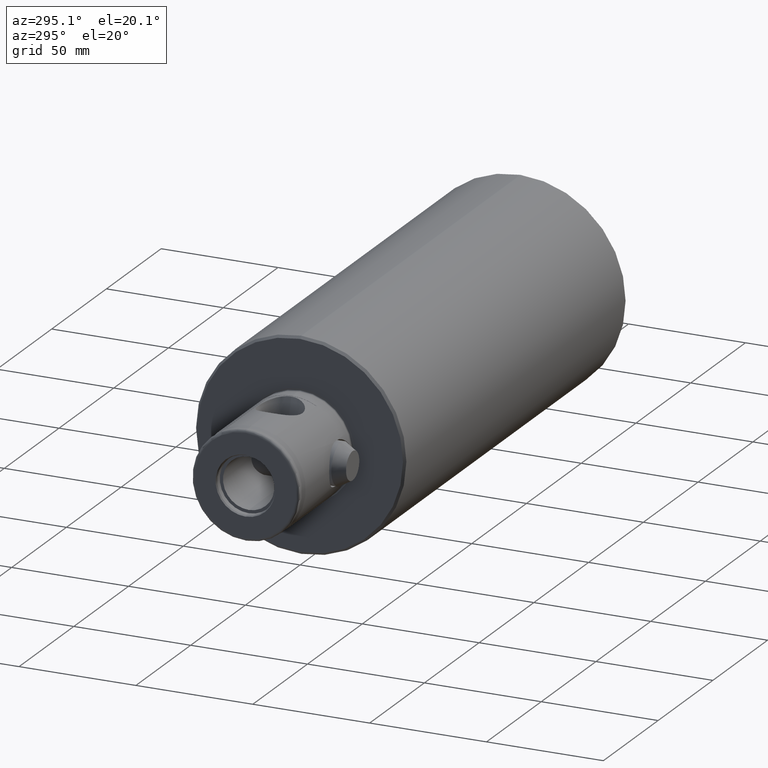
[diagram: clean part render]
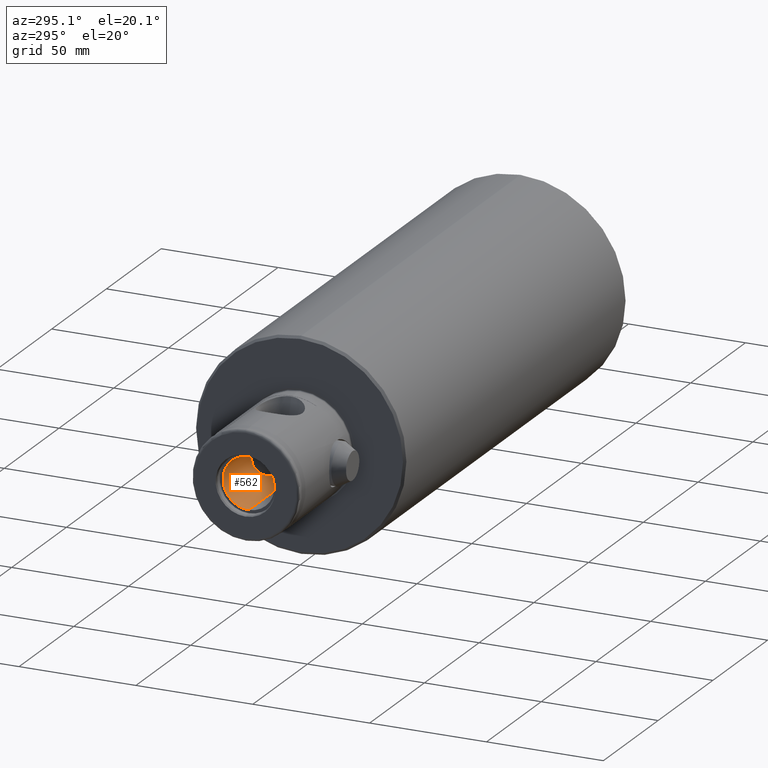
[diagram: same view with one face highlighted and labeled with its STEP entity id]
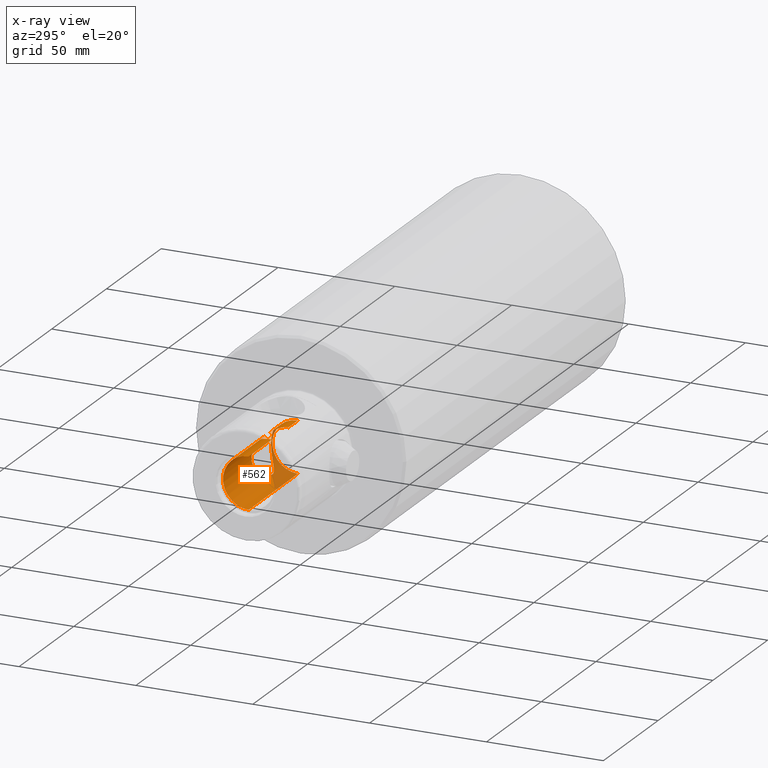
[diagram: x-ray of the same camera — body ghosted, the highlighted face saturated]
A machine part, auxiliary view. The second image highlights one B-rep face of the part: STEP entity #562.
The next image is the same camera in x-ray: the body ghosted, the highlighted face saturated — about 17% of this face is hidden behind the body in this view.
In plain terms, the highlighted cylindrical surface (edge-blend (fillet) strip) has radius 11 mm, axis along (-1, -0, -0).
Its self-contained STEP definition (entity closure, byte-faithful):
#211 = VERTEX_POINT ( 'NONE', #1195 ) ;
#230 = VERTEX_POINT ( 'NONE', #1301 ) ;
#313 = EDGE_CURVE ( 'NONE', #314, #315, #1628, .T. ) ;
#314 = VERTEX_POINT ( 'NONE', #1549 ) ;
#315 = VERTEX_POINT ( 'NONE', #1629 ) ;
#430 = VERTEX_POINT ( 'NONE', #1937 ) ;
#474 = EDGE_CURVE ( 'NONE', #484, #211, #3357, .T. ) ;
#484 = VERTEX_POINT ( 'NONE', #3327 ) ;
#507 = EDGE_CURVE ( 'NONE', #430, #546, #3373, .T. ) ;
#542 = EDGE_CURVE ( 'NONE', #230, #544, #2094, .T. ) ;
#544 = VERTEX_POINT ( 'NONE', #2090 ) ;
#546 = VERTEX_POINT ( 'NONE', #2040 ) ;
#562 = ADVANCED_FACE ( 'NONE', ( #2160, #2136 ), #2143, .F. ) ;
#563 = ORIENTED_EDGE ( 'NONE', *, *, #596, .F. ) ;
#585 = ORIENTED_EDGE ( 'NONE', *, *, #745, .F. ) ;
#586 = EDGE_LOOP ( 'NONE', ( #637, #743 ) ) ;
#595 = EDGE_CURVE ( 'NONE', #315, #314, #2243, .T. ) ;
#596 = EDGE_CURVE ( 'NONE', #484, #430, #2181, .T. ) ;
#608 = EDGE_CURVE ( 'NONE', #544, #546, #2327, .T. ) ;
#609 = ORIENTED_EDGE ( 'NONE', *, *, #608, .T. ) ;
#610 = ORIENTED_EDGE ( 'NONE', *, *, #507, .F. ) ;
#637 = ORIENTED_EDGE ( 'NONE', *, *, #595, .T. ) ;
#667 = ORIENTED_EDGE ( 'NONE', *, *, #474, .T. ) ;
#743 = ORIENTED_EDGE ( 'NONE', *, *, #313, .T. ) ;
#745 = EDGE_CURVE ( 'NONE', #230, #211, #2488, .T. ) ;
#746 = EDGE_LOOP ( 'NONE', ( #610, #563, #667, #585, #747, #609 ) ) ;
#747 = ORIENTED_EDGE ( 'NONE', *, *, #542, .T. ) ;
#1195 = CARTESIAN_POINT ( 'NONE',  ( 39.29999999999999700, 0.0000000000000000000, 11.00000000000000000 ) ) ;
#1301 = CARTESIAN_POINT ( 'NONE',  ( 24.29999999999999000, 2.258328280272642200E-020, 11.00000000000000000 ) ) ;
#1505 = CARTESIAN_POINT ( 'NONE',  ( 35.56241124897054800, 6.773151438223648000, 8.668594485892423800 ) ) ;
#1506 = CARTESIAN_POINT ( 'NONE',  ( 35.00207751754993500, 6.994374932525801100, 8.491102994853516600 ) ) ;
#1507 = CARTESIAN_POINT ( 'NONE',  ( 34.73243995391133200, 7.115117841734931200, 8.390691223271426600 ) ) ;
#1508 = CARTESIAN_POINT ( 'NONE',  ( 33.94870166744479400, 7.496988139732116500, 8.056647767958544600 ) ) ;
#1509 = CARTESIAN_POINT ( 'NONE',  ( 33.45930032922770200, 7.777229871337514300, 7.790658944439846000 ) ) ;
#1510 = CARTESIAN_POINT ( 'NONE',  ( 32.76260568321712400, 8.209575931333963800, 7.324464543071621300 ) ) ;
#1511 = CARTESIAN_POINT ( 'NONE',  ( 32.53662872687979000, 8.355986537263556000, 7.157469761059587700 ) ) ;
#1512 = CARTESIAN_POINT ( 'NONE',  ( 37.99999999999999300, 6.324555320336747500, 9.000000000000003600 ) ) ;
#1513 = CARTESIAN_POINT ( 'NONE',  ( 37.68253252754211500, 6.324555320336748400, 9.000000000000003600 ) ) ;
#1514 = CARTESIAN_POINT ( 'NONE',  ( 37.36758758028091900, 6.348810466722651000, 8.983078160859561100 ) ) ;
#1515 = CARTESIAN_POINT ( 'NONE',  ( 36.75246002574575500, 6.439239462942379300, 8.918479843861545600 ) ) ;
#1516 = CARTESIAN_POINT ( 'NONE',  ( 36.45039919126622900, 6.505369226234806000, 8.870794822159627600 ) ) ;
#1517 = CARTESIAN_POINT ( 'NONE',  ( 35.85582995770661800, 6.672033518612054500, 8.746130474273416100 ) ) ;
#1523 = CARTESIAN_POINT ( 'NONE',  ( 28.99932927823758500, 11.00054877189567100, 0.2918124169081550100 ) ) ;
#1524 = CARTESIAN_POINT ( 'NONE',  ( 29.00071516957389400, 10.99941486172795500, -0.3318139073567099600 ) ) ;
#1525 = CARTESIAN_POINT ( 'NONE',  ( 29.01756788672949100, 10.98561425411706300, -0.6432021774064070600 ) ) ;
#1526 = CARTESIAN_POINT ( 'NONE',  ( 29.08387648782999300, 10.93146341324058600, -1.265123403570919800 ) ) ;
#1527 = CARTESIAN_POINT ( 'NONE',  ( 29.13388790492686900, 10.89066197485385100, -1.577329599810656700 ) ) ;
#1528 = CARTESIAN_POINT ( 'NONE',  ( 29.32798476031978700, 10.73303995099935200, -2.485920569551182300 ) ) ;
#1529 = CARTESIAN_POINT ( 'NONE',  ( 29.51573923968092600, 10.58116722006069200, -3.062465036862974000 ) ) ;
#1530 = CARTESIAN_POINT ( 'NONE',  ( 29.62486903029110500, 10.49464205608623900, 3.308720680275588400 ) ) ;
#1531 = CARTESIAN_POINT ( 'NONE',  ( 29.51740374296807800, 10.58071000996653600, 3.022975485109763200 ) ) ;
#1532 = CARTESIAN_POINT ( 'NONE',  ( 29.33239189154934900, 10.72960462351121400, 2.442414731716818600 ) ) ;
#1533 = CARTESIAN_POINT ( 'NONE',  ( 29.25414893641667300, 10.79298596828221700, 2.146096540715255200 ) ) ;
#1534 = CARTESIAN_POINT ( 'NONE',  ( 29.12746308204170400, 10.89589586246529200, 1.540691347388762700 ) ) ;
#1535 = CARTESIAN_POINT ( 'NONE',  ( 29.07882424051056300, 10.93558575195800800, 1.229394952563785700 ) ) ;
#1536 = CARTESIAN_POINT ( 'NONE',  ( 29.01479483002166800, 10.98788290588002600, 0.6040504403490600800 ) ) ;
#1548 = CARTESIAN_POINT ( 'NONE',  ( 37.99999999999999300, 6.324555320336755500, -9.000000000000003600 ) ) ;
#1549 = CARTESIAN_POINT ( 'NONE',  ( 37.99999999999999300, 6.324555320336755500, -9.000000000000003600 ) ) ;
#1568 = CARTESIAN_POINT ( 'NONE',  ( 32.10389577112371000, 8.645121770151503100, 6.805420925311279800 ) ) ;
#1569 = CARTESIAN_POINT ( 'NONE',  ( 31.89613122761812000, 8.788471667187545600, 6.619740072472650300 ) ) ;
#1570 = CARTESIAN_POINT ( 'NONE',  ( 31.49700084325641900, 9.070227025113949200, 6.228095582515657600 ) ) ;
#1571 = CARTESIAN_POINT ( 'NONE',  ( 31.30563826794921700, 9.208643388611824000, 6.022136398295314700 ) ) ;
#1572 = CARTESIAN_POINT ( 'NONE',  ( 30.93938088378450500, 9.478236986029939400, 5.588225433440531900 ) ) ;
#1573 = CARTESIAN_POINT ( 'NONE',  ( 30.76383285977946600, 9.609927495919244200, 5.359230109251044800 ) ) ;
#1574 = CARTESIAN_POINT ( 'NONE',  ( 30.27061858885429000, 9.984873728867818000, 4.646559155060434600 ) ) ;
#1575 = CARTESIAN_POINT ( 'NONE',  ( 29.98422543537160600, 10.20937874570888000, 4.136322440102720300 ) ) ;
#1590 = CARTESIAN_POINT ( 'NONE',  ( 29.87773150708439100, 10.29397154860352800, -3.888328396208949700 ) ) ;
#1591 = CARTESIAN_POINT ( 'NONE',  ( 30.01123720998654700, 10.18883133069315300, -4.155091366563233600 ) ) ;
#1592 = CARTESIAN_POINT ( 'NONE',  ( 30.29710993387521600, 9.966266519665961000, -4.663753832353084900 ) ) ;
#1593 = CARTESIAN_POINT ( 'NONE',  ( 30.45016142005556900, 9.848293230677773700, -4.907236627955245300 ) ) ;
#1594 = CARTESIAN_POINT ( 'NONE',  ( 30.93797117138971600, 9.477738077880625100, -5.608197967950896900 ) ) ;
#1595 = CARTESIAN_POINT ( 'NONE',  ( 31.30097602784043800, 9.208474581211614700, -6.036457715081511700 ) ) ;
#1596 = CARTESIAN_POINT ( 'NONE',  ( 35.00587502797889500, 6.982137574739811100, -8.506897211298197100 ) ) ;
#1597 = CARTESIAN_POINT ( 'NONE',  ( 35.56178348825189100, 6.754377607669270300, -8.684545351785480700 ) ) ;
#1598 = CARTESIAN_POINT ( 'NONE',  ( 36.45023659715003800, 6.505455086465420100, -8.870726595185537600 ) ) ;
#1599 = CARTESIAN_POINT ( 'NONE',  ( 36.75856573218269600, 6.437997773600920400, -8.919374952405206600 ) ) ;
#1600 = CARTESIAN_POINT ( 'NONE',  ( 37.37621731899002200, 6.347894227592907300, -8.983724380777518400 ) ) ;
#1601 = CARTESIAN_POINT ( 'NONE',  ( 37.68704853472901600, 6.324555320336752800, -9.000000000000003600 ) ) ;
#1602 = CARTESIAN_POINT ( 'NONE',  ( 31.90312402947133900, 8.783602170141907800, -6.626238705432866600 ) ) ;
#1603 = CARTESIAN_POINT ( 'NONE',  ( 32.11240224775289000, 8.639332235174972400, -6.812727360299576600 ) ) ;
#1604 = CARTESIAN_POINT ( 'NONE',  ( 32.54346331369476500, 8.351529607590643800, -7.162630017601404800 ) ) ;
#1605 = CARTESIAN_POINT ( 'NONE',  ( 32.76597117201578200, 8.207467075943753800, -7.326768196248671900 ) ) ;
#1606 = CARTESIAN_POINT ( 'NONE',  ( 33.45605761540719000, 7.779283033584941400, -7.788385423207064800 ) ) ;
#1607 = CARTESIAN_POINT ( 'NONE',  ( 33.94538452571082100, 7.498357647435774700, -8.055568128153844000 ) ) ;
#1628 = B_SPLINE_CURVE_WITH_KNOTS ( 'NONE', 3,
 ( #1548, #1601, #1600, #1599, #1598, #1597, #1596, #1607, #1606, #1605, #1604, #1603, #1602, #1595, #1594, #1593, #1592, #1591, #1590, #1529, #1528, #1527, #1526, #1525, #1524, #1523, #1536, #1535, #1534, #1533, #1532, #1531, #1530, #1575, #1574, #1573, #1572, #1571, #1570, #1569, #1568, #1511, #1510, #1509, #1508, #1507, #1506, #1505, #1517, #1516, #1515, #1514, #1513, #1512 ),
 .UNSPECIFIED., .F., .F.,
 ( 4, 2, 2, 2, 2, 2, 2, 2, 2, 2, 2, 2, 2, 2, 2, 2, 2, 2, 2, 2, 2, 2, 2, 2, 2, 2, 4 ),
 ( 0.02997932417630955500, 0.03091598688851944500, 0.03185264960072933800, 0.03372597502514909600, 0.03559930044956885500, 0.03653596316177873400, 0.03747262587398861300, 0.03934595129840839900, 0.04028261401061829200, 0.04121927672282819200, 0.04309260214724797800, 0.04402926485945787800, 0.04496592757166777100, 0.04590259028387766400, 0.04683925299608755800, 0.04777591570829745100, 0.04871257842050734400, 0.05058590384492713000, 0.05152256655713702300, 0.05245922926934691600, 0.05339589198155680900, 0.05433255469376670200, 0.05620588011818650200, 0.05714254283039640900, 0.05807920554260631600, 0.05901586825481620900, 0.05995253096702611600 ),
 .UNSPECIFIED. ) ;
#1629 = CARTESIAN_POINT ( 'NONE',  ( 37.99999999999999300, 6.324555320336747500, 9.000000000000003600 ) ) ;
#1937 = CARTESIAN_POINT ( 'NONE',  ( 48.00000000000000000, 1.347066989204615000E-015, -11.00000000000000000 ) ) ;
#2040 = CARTESIAN_POINT ( 'NONE',  ( 3.000000000000000900, 1.347066989204615000E-015, -11.00000000000000000 ) ) ;
#2090 = CARTESIAN_POINT ( 'NONE',  ( 3.000000000000000900, 0.0000000000000000000, 11.00000000000000000 ) ) ;
#2091 = DIRECTION ( 'NONE',  ( -1.000000000000000000, -0.0000000000000000000, -0.0000000000000000000 ) ) ;
#2092 = VECTOR ( 'NONE', #2091, 1000.000000000000000 ) ;
#2093 = CARTESIAN_POINT ( 'NONE',  ( 0.0000000000000000000, 0.0000000000000000000, 11.00000000000000000 ) ) ;
#2094 = LINE ( 'NONE', #2093, #2092 ) ;
#2136 = FACE_BOUND ( 'NONE', #586, .T. ) ;
#2143 = CYLINDRICAL_SURFACE ( 'NONE', #2165, 11.00000000000000000 ) ;
#2160 = FACE_OUTER_BOUND ( 'NONE', #746, .T. ) ;
#2162 = DIRECTION ( 'NONE',  ( 0.0000000000000000000, 0.0000000000000000000, 1.000000000000000000 ) ) ;
#2163 = DIRECTION ( 'NONE',  ( -1.000000000000000000, -0.0000000000000000000, -0.0000000000000000000 ) ) ;
#2164 = CARTESIAN_POINT ( 'NONE',  ( 0.0000000000000000000, 0.0000000000000000000, 0.0000000000000000000 ) ) ;
#2165 = AXIS2_PLACEMENT_3D ( 'NONE', #2164, #2163, #2162 ) ;
#2177 = DIRECTION ( 'NONE',  ( 0.0000000000000000000, 0.0000000000000000000, 1.000000000000000000 ) ) ;
#2178 = DIRECTION ( 'NONE',  ( -1.000000000000000000, -0.0000000000000000000, -0.0000000000000000000 ) ) ;
#2179 = CARTESIAN_POINT ( 'NONE',  ( 48.00000000000000000, 0.0000000000000000000, 0.0000000000000000000 ) ) ;
#2180 = AXIS2_PLACEMENT_3D ( 'NONE', #2179, #2178, #2177 ) ;
#2181 = CIRCLE ( 'NONE', #2180, 11.00000000000000000 ) ;
#2183 = CARTESIAN_POINT ( 'NONE',  ( 37.99999999999999300, 6.324555320336755500, -9.000000000000003600 ) ) ;
#2184 = CARTESIAN_POINT ( 'NONE',  ( 38.31301533714151500, 6.324555320336751900, -9.000000000000001800 ) ) ;
#2185 = CARTESIAN_POINT ( 'NONE',  ( 41.26054667750432300, 7.111861497588347600, 8.393462625440451000 ) ) ;
#2186 = CARTESIAN_POINT ( 'NONE',  ( 40.99065416860920400, 6.991300054572744400, 8.493619833077284300 ) ) ;
#2187 = CARTESIAN_POINT ( 'NONE',  ( 40.43272854881490700, 6.771442408310679000, 8.669914765027652200 ) ) ;
#2188 = CARTESIAN_POINT ( 'NONE',  ( 40.14355949969445400, 6.671793649058951600, 8.746316722886390900 ) ) ;
#2198 = CARTESIAN_POINT ( 'NONE',  ( 46.49633905486662400, 10.59087095141758200, -3.028991403410629300 ) ) ;
#2199 = CARTESIAN_POINT ( 'NONE',  ( 46.68205065472836400, 10.74115974393063400, -2.450842812997033900 ) ) ;
#2200 = CARTESIAN_POINT ( 'NONE',  ( 46.87263552835602100, 10.89597579326363800, -1.540291302733576500 ) ) ;
#2201 = CARTESIAN_POINT ( 'NONE',  ( 46.92123903578735200, 10.93563755197362200, -1.228369295578493300 ) ) ;
#2202 = CARTESIAN_POINT ( 'NONE',  ( 46.98489825422080900, 10.98763210947562300, -0.6074540486948801800 ) ) ;
#2203 = CARTESIAN_POINT ( 'NONE',  ( 47.00051899953819400, 11.00042463577868700, -0.2963622376990505700 ) ) ;
#2204 = CARTESIAN_POINT ( 'NONE',  ( 39.24858208869437000, 6.421128397702421600, 8.933792976719424000 ) ) ;
#2205 = CARTESIAN_POINT ( 'NONE',  ( 38.63506453204708200, 6.324555320336748400, 9.000000000000005300 ) ) ;
#2206 = CARTESIAN_POINT ( 'NONE',  ( 37.99999999999999300, 6.324555320336747500, 9.000000000000003600 ) ) ;
#2218 = CARTESIAN_POINT ( 'NONE',  ( 46.47279249563799700, 10.57284959928776400, 3.050255294031694000 ) ) ;
#2219 = CARTESIAN_POINT ( 'NONE',  ( 46.36466785987292400, 10.48629117458019500, 3.335020090289114900 ) ) ;
#2220 = CARTESIAN_POINT ( 'NONE',  ( 46.00362563505198200, 10.19983137480273100, 4.159577662267176700 ) ) ;
#2221 = CARTESIAN_POINT ( 'NONE',  ( 45.71725069202555100, 9.975506169973108700, 4.666101652065338900 ) ) ;
#2222 = CARTESIAN_POINT ( 'NONE',  ( 45.06304376935422300, 9.478467829317992300, 5.607305554645862800 ) ) ;
#2223 = CARTESIAN_POINT ( 'NONE',  ( 44.69190910391113600, 9.203366826855390300, 6.043899981808508800 ) ) ;
#2224 = CARTESIAN_POINT ( 'NONE',  ( 43.89542543010350100, 8.641548153922689900, 6.823073606755429800 ) ) ;
#2225 = CARTESIAN_POINT ( 'NONE',  ( 43.46784796422465300, 8.352655723735694000, 7.170084015435804800 ) ) ;
#2226 = CARTESIAN_POINT ( 'NONE',  ( 42.54632757909209300, 7.780654904041955300, 7.787064382157796900 ) ) ;
#2227 = CARTESIAN_POINT ( 'NONE',  ( 42.04806485527141300, 7.495096154904448600, 8.058454495181921500 ) ) ;
#2228 = CARTESIAN_POINT ( 'NONE',  ( 43.47853198897400500, 8.359513932091463300, -7.162354338445920700 ) ) ;
#2229 = CARTESIAN_POINT ( 'NONE',  ( 43.90811780204794700, 8.650212389584920600, -6.812223348458227100 ) ) ;
#2230 = CARTESIAN_POINT ( 'NONE',  ( 44.70540164537325000, 9.213182384378743700, -6.029082159531515800 ) ) ;
#2231 = CARTESIAN_POINT ( 'NONE',  ( 45.07546786174461300, 9.487731981132151700, -5.591855760278596300 ) ) ;
#2232 = CARTESIAN_POINT ( 'NONE',  ( 45.72997300482472800, 9.985354041722097000, -4.645278640837702300 ) ) ;
#2233 = CARTESIAN_POINT ( 'NONE',  ( 46.01712027941731300, 10.21043523797949200, -4.133805593220717600 ) ) ;
#2234 = CARTESIAN_POINT ( 'NONE',  ( 38.63133643436899000, 6.348600204817959300, -8.983229605715196800 ) ) ;
#2235 = CARTESIAN_POINT ( 'NONE',  ( 39.25081776414827300, 6.439773594340237200, -8.918097037106671000 ) ) ;
#2236 = CARTESIAN_POINT ( 'NONE',  ( 39.55311257179664600, 6.506259890984442700, -8.870137948528054000 ) ) ;
#2237 = CARTESIAN_POINT ( 'NONE',  ( 40.14520377559622200, 6.672417728769112900, -8.745833673684746400 ) ) ;
#2238 = CARTESIAN_POINT ( 'NONE',  ( 40.43680876987923500, 6.772844978559375000, -8.668840002948798000 ) ) ;
#2239 = CARTESIAN_POINT ( 'NONE',  ( 40.99861641742759800, 6.994647420814213300, -8.490884733572777100 ) ) ;
#2240 = CARTESIAN_POINT ( 'NONE',  ( 41.26908298465747300, 7.115793493933878700, -8.390132143739940300 ) ) ;
#2241 = CARTESIAN_POINT ( 'NONE',  ( 42.05550310043204100, 7.499170577374045800, -8.054674320068270900 ) ) ;
#2242 = CARTESIAN_POINT ( 'NONE',  ( 42.54834658000569200, 7.781684717236307900, -7.786281256917020800 ) ) ;
#2243 = B_SPLINE_CURVE_WITH_KNOTS ( 'NONE', 3,
 ( #2206, #2205, #2204, #2188, #2187, #2186, #2185, #2227, #2226, #2225, #2224, #2223, #2222, #2221, #2220, #2219, #2218, #2249, #2248, #2247, #2246, #2245, #2244, #2203, #2202, #2201, #2200, #2199, #2198, #2233, #2232, #2231, #2230, #2229, #2228, #2242, #2241, #2240, #2239, #2238, #2237, #2236, #2235, #2234, #2184, #2183 ),
 .UNSPECIFIED., .F., .F.,
 ( 4, 2, 2, 2, 2, 2, 2, 2, 2, 2, 2, 2, 2, 2, 2, 2, 2, 2, 2, 2, 2, 2, 4 ),
 ( 0.0000000000000000000, 0.001873707761019377600, 0.002810561641529056500, 0.003747415522038736100, 0.005621123283058078300, 0.007494831044077420100, 0.009368538805096764500, 0.01124224656611610600, 0.01217910044662577800, 0.01311595432713545000, 0.01405280820764512200, 0.01498966208815479500, 0.01592651596866446700, 0.01686336984917413700, 0.01873707761019348000, 0.02061078537121282000, 0.02248449313223216000, 0.02435820089325150400, 0.02623190865427084400, 0.02716876253478052100, 0.02810561641529020100, 0.02904247029579987800, 0.02997932417630955500 ),
 .UNSPECIFIED. ) ;
#2244 = CARTESIAN_POINT ( 'NONE',  ( 46.99945477618492600, 10.99955390799992800, 0.3270880132074343600 ) ) ;
#2245 = CARTESIAN_POINT ( 'NONE',  ( 46.98277198995921800, 10.98589199867828700, 0.6394463760322596200 ) ) ;
#2246 = CARTESIAN_POINT ( 'NONE',  ( 46.91614740903806800, 10.93148274493099800, 1.265464211947639600 ) ) ;
#2247 = CARTESIAN_POINT ( 'NONE',  ( 46.86659550294034900, 10.89105651715150300, 1.574297101343364000 ) ) ;
#2248 = CARTESIAN_POINT ( 'NONE',  ( 46.73817599520397400, 10.78676577896197100, 2.176972083629292100 ) ) ;
#2249 = CARTESIAN_POINT ( 'NONE',  ( 46.65917574417207400, 10.72279163946955200, 2.472032658451278400 ) ) ;
#2253 = AXIS2_PLACEMENT_3D ( 'NONE', #2316, #2318, #2269 ) ;
#2269 = DIRECTION ( 'NONE',  ( 0.0000000000000000000, 0.0000000000000000000, 1.000000000000000000 ) ) ;
#2316 = CARTESIAN_POINT ( 'NONE',  ( 3.000000000000000900, 0.0000000000000000000, 0.0000000000000000000 ) ) ;
#2318 = DIRECTION ( 'NONE',  ( -1.000000000000000000, -0.0000000000000000000, -0.0000000000000000000 ) ) ;
#2327 = CIRCLE ( 'NONE', #2253, 11.00000000000000000 ) ;
#2484 = CARTESIAN_POINT ( 'NONE',  ( 24.36407565706271000, 1.010615480387612000, 10.95639618308992300 ) ) ;
#2485 = CARTESIAN_POINT ( 'NONE',  ( 24.31279293125874100, 0.5060086885394257100, 10.99126544930787700 ) ) ;
#2486 = CARTESIAN_POINT ( 'NONE',  ( 24.29999999999999000, 0.2532377264689832900, 11.00000000000000400 ) ) ;
#2487 = CARTESIAN_POINT ( 'NONE',  ( 24.29999999999999000, 2.258328280272642200E-020, 11.00000000000000000 ) ) ;
#2488 = B_SPLINE_CURVE_WITH_KNOTS ( 'NONE', 3,
 ( #2487, #2486, #2485, #2484, #2509, #2508, #2507, #2506, #2505, #2504, #2503, #2502, #2501, #2500, #2547, #2546, #2545, #2544, #2543, #2542, #2541, #2540, #2539, #2538, #2659, #2658, #2657, #2656, #2655, #2654, #2653, #2652, #2651, #2650, #2649, #2521, #2520, #2519, #2518, #2517, #2516, #2515, #2514, #2513, #2512, #2511, #2510, #2582 ),
 .UNSPECIFIED., .F., .F.,
 ( 4, 2, 2, 2, 2, 2, 2, 2, 2, 2, 2, 2, 2, 2, 2, 2, 2, 2, 2, 2, 2, 2, 2, 4 ),
 ( 0.02429713500112121200, 0.02505523886545145800, 0.02581334272978170300, 0.02732955045844219500, 0.02808765432277243700, 0.02884575818710268700, 0.02960386205143292900, 0.03036196591576317800, 0.03187817364442367000, 0.03339438137308416200, 0.03491058910174465300, 0.03642679683040514500, 0.03718490069473540100, 0.03794300455906565000, 0.03870110842339591400, 0.03945921228772617000, 0.04097542001638669600, 0.04249162774504722200, 0.04324973160937748600, 0.04400783547370774900, 0.04552404320236828200, 0.04628214706669855200, 0.04704025093102881500, 0.04855645865968935500 ),
 .UNSPECIFIED. ) ;
#2500 = CARTESIAN_POINT ( 'NONE',  ( 26.18734645111606000, 4.980503211646937900, 9.810015118292724900 ) ) ;
#2501 = CARTESIAN_POINT ( 'NONE',  ( 25.88119242278389400, 4.612484034109406200, 9.988333189148381300 ) ) ;
#2502 = CARTESIAN_POINT ( 'NONE',  ( 25.73703178549786200, 4.421331028899876600, 10.07462622522845300 ) ) ;
#2503 = CARTESIAN_POINT ( 'NONE',  ( 25.46642186055301600, 4.024119728424515200, 10.23976181639389300 ) ) ;
#2504 = CARTESIAN_POINT ( 'NONE',  ( 25.33997156212270200, 3.818064542670236000, 10.31861034351635800 ) ) ;
#2505 = CARTESIAN_POINT ( 'NONE',  ( 25.10537654587845300, 3.389926411842123500, 10.46707863711808000 ) ) ;
#2506 = CARTESIAN_POINT ( 'NONE',  ( 24.99682732331299900, 3.166707797428922600, 10.53697028055448300 ) ) ;
#2507 = CARTESIAN_POINT ( 'NONE',  ( 24.70599634501847000, 2.483928162322173200, 10.72628662467886500 ) ) ;
#2508 = CARTESIAN_POINT ( 'NONE',  ( 24.55633730870787800, 2.009095652512159700, 10.82658515496157200 ) ) ;
#2509 = CARTESIAN_POINT ( 'NONE',  ( 24.40295549914072700, 1.264124710560106300, 10.92999732757499100 ) ) ;
#2510 = CARTESIAN_POINT ( 'NONE',  ( 39.29999999999999000, 0.5136220447435404500, 10.99999999999999600 ) ) ;
#2511 = CARTESIAN_POINT ( 'NONE',  ( 39.24750942866275200, 1.019691937113436100, 10.96401941234319800 ) ) ;
#2512 = CARTESIAN_POINT ( 'NONE',  ( 39.09450916790748900, 1.761796833767195200, 10.86086761022069200 ) ) ;
#2513 = CARTESIAN_POINT ( 'NONE',  ( 39.03044363774270000, 2.008371275762804900, 10.81786310423032100 ) ) ;
#2514 = CARTESIAN_POINT ( 'NONE',  ( 38.88016117923312700, 2.486802777858208000, 10.71800024571811400 ) ) ;
#2515 = CARTESIAN_POINT ( 'NONE',  ( 38.79422539784052000, 2.718573682580859100, 10.66132621669235200 ) ) ;
#2516 = CARTESIAN_POINT ( 'NONE',  ( 38.50622188751628300, 3.393510738022111000, 10.47388004210189100 ) ) ;
#2517 = CARTESIAN_POINT ( 'NONE',  ( 38.27429659652968800, 3.816480711961514500, 10.32572275253269600 ) ) ;
#2518 = CARTESIAN_POINT ( 'NONE',  ( 37.86822529902526900, 4.414142281510908800, 10.07779076808574300 ) ) ;
#2519 = CARTESIAN_POINT ( 'NONE',  ( 37.72240180175337100, 4.607855280061470700, 9.990466919091369700 ) ) ;
#2520 = CARTESIAN_POINT ( 'NONE',  ( 37.41686450622307800, 4.975741804207014100, 9.812428498660059600 ) ) ;
#2521 = CARTESIAN_POINT ( 'NONE',  ( 37.25664516097929600, 5.150819778726361000, 9.721386010834464700 ) ) ;
#2538 = CARTESIAN_POINT ( 'NONE',  ( 32.05838236706395600, 7.499906575631860600, 8.046825546321475300 ) ) ;
#2539 = CARTESIAN_POINT ( 'NONE',  ( 31.29141382819271300, 7.500185362316638100, 8.046565701927926600 ) ) ;
#2540 = CARTESIAN_POINT ( 'NONE',  ( 30.78856460776649600, 7.448651717178701200, 8.095442772959607700 ) ) ;
#2541 = CARTESIAN_POINT ( 'NONE',  ( 29.79839614849855800, 7.245619088673263000, 8.277657284277163200 ) ) ;
#2542 = CARTESIAN_POINT ( 'NONE',  ( 29.32759819686306100, 7.097319214656165400, 8.407541950684583700 ) ) ;
#2543 = CARTESIAN_POINT ( 'NONE',  ( 28.43503943268147800, 6.720249332522851800, 8.711885593599980400 ) ) ;
#2544 = CARTESIAN_POINT ( 'NONE',  ( 28.00806737447464200, 6.488204517393230100, 8.888562194949141600 ) ) ;
#2545 = CARTESIAN_POINT ( 'NONE',  ( 27.21993309956262100, 5.958064961341347200, 9.252286078015394800 ) ) ;
#2546 = CARTESIAN_POINT ( 'NONE',  ( 26.85560533448443700, 5.659380968227361900, 9.440209164204697200 ) ) ;
#2547 = CARTESIAN_POINT ( 'NONE',  ( 26.34973513523607400, 5.157617743871503200, 9.717793716166696100 ) ) ;
#2582 = CARTESIAN_POINT ( 'NONE',  ( 39.29999999999999700, 0.0000000000000000000, 11.00000000000000000 ) ) ;
#2649 = CARTESIAN_POINT ( 'NONE',  ( 36.75365337721140000, 5.651106213961317500, 9.445113022976197900 ) ) ;
#2650 = CARTESIAN_POINT ( 'NONE',  ( 36.38748684525008800, 5.952619829403669600, 9.255879000641673600 ) ) ;
#2651 = CARTESIAN_POINT ( 'NONE',  ( 35.59425610840023800, 6.487090177623530400, 8.889467921946147700 ) ) ;
#2652 = CARTESIAN_POINT ( 'NONE',  ( 35.17522059415174600, 6.715067086464468800, 8.715896335599046200 ) ) ;
#2653 = CARTESIAN_POINT ( 'NONE',  ( 34.50692423430975700, 6.998651384262011300, 8.487262369499616100 ) ) ;
#2654 = CARTESIAN_POINT ( 'NONE',  ( 34.27746926979696700, 7.083353857473908600, 8.416392013305833000 ) ) ;
#2655 = CARTESIAN_POINT ( 'NONE',  ( 33.80314614133706600, 7.231815912302058900, 8.289173360619470200 ) ) ;
#2656 = CARTESIAN_POINT ( 'NONE',  ( 33.56043567830499800, 7.294760951974120100, 8.233533830072518700 ) ) ;
#2657 = CARTESIAN_POINT ( 'NONE',  ( 33.07007651717231100, 7.395916222106834000, 8.142790671076594900 ) ) ;
#2658 = CARTESIAN_POINT ( 'NONE',  ( 32.82142083755870500, 7.434452848701832700, 8.107414163520180800 ) ) ;
#2659 = CARTESIAN_POINT ( 'NONE',  ( 32.31659318216672700, 7.486489242035202300, 8.059387843211766300 ) ) ;
#3327 = CARTESIAN_POINT ( 'NONE',  ( 48.00000000000000000, 0.0000000000000000000, 11.00000000000000000 ) ) ;
#3329 = DIRECTION ( 'NONE',  ( -1.000000000000000000, -0.0000000000000000000, -0.0000000000000000000 ) ) ;
#3330 = VECTOR ( 'NONE', #3329, 1000.000000000000000 ) ;
#3347 = DIRECTION ( 'NONE',  ( -1.000000000000000000, -0.0000000000000000000, -0.0000000000000000000 ) ) ;
#3348 = VECTOR ( 'NONE', #3347, 1000.000000000000000 ) ;
#3349 = CARTESIAN_POINT ( 'NONE',  ( 0.0000000000000000000, 0.0000000000000000000, 11.00000000000000000 ) ) ;
#3357 = LINE ( 'NONE', #3349, #3348 ) ;
#3372 = CARTESIAN_POINT ( 'NONE',  ( 0.0000000000000000000, 1.347066989204615000E-015, -11.00000000000000000 ) ) ;
#3373 = LINE ( 'NONE', #3372, #3330 ) ;